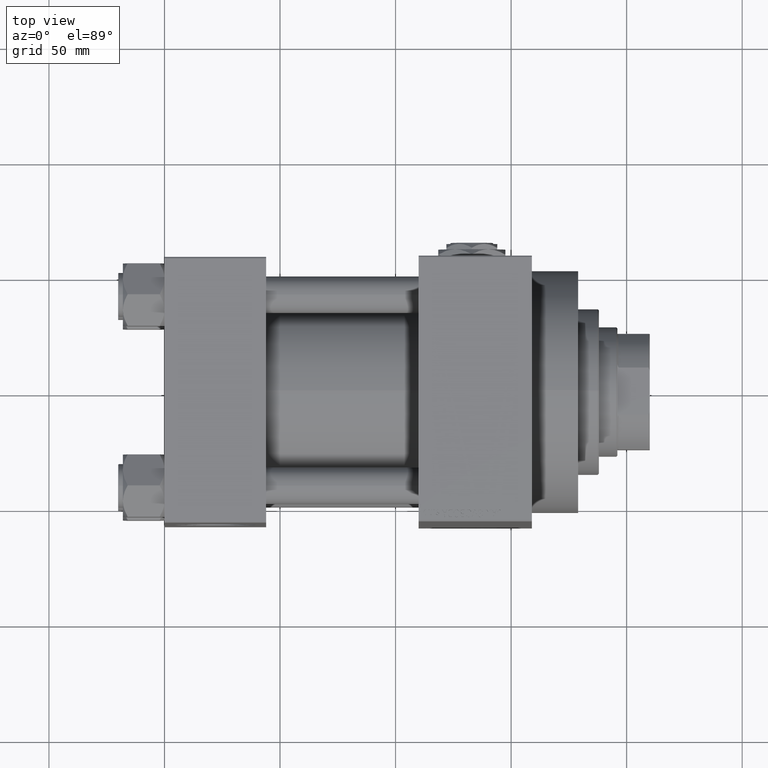
[diagram: clean part render]
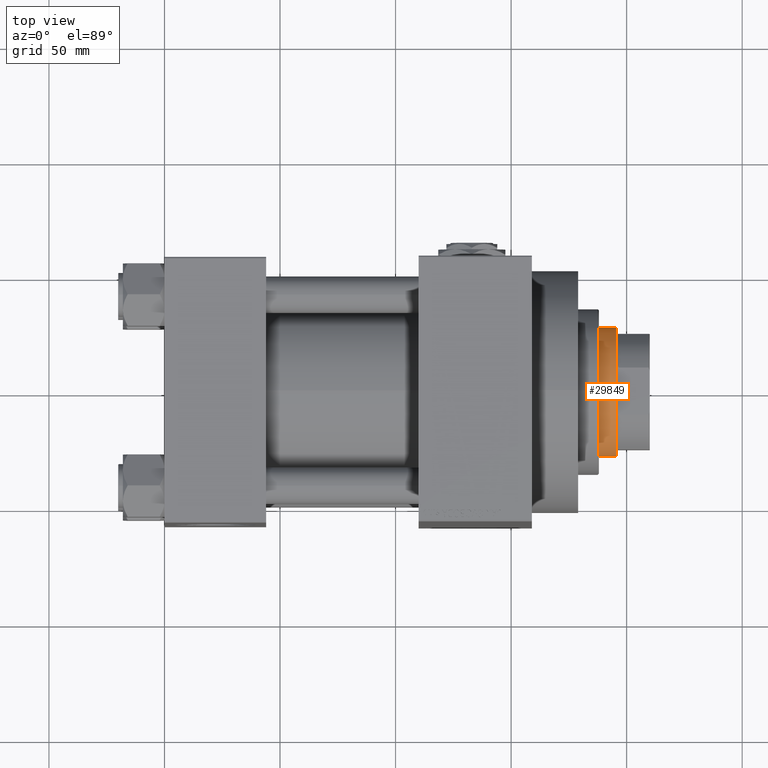
[diagram: same view with one face highlighted and labeled with its STEP entity id]
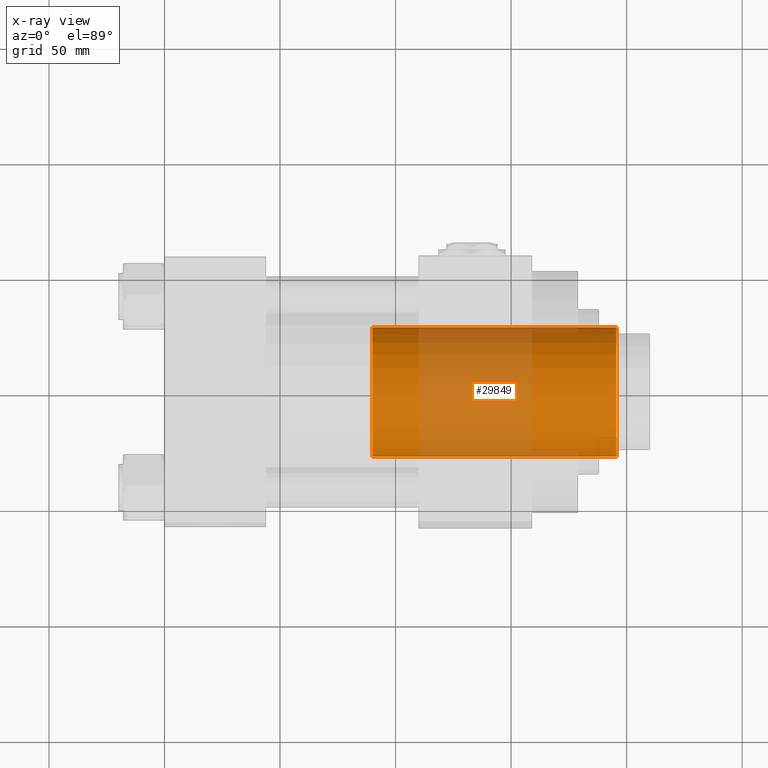
[diagram: x-ray of the same camera — body ghosted, the highlighted face saturated]
A machine part, top view. The second image highlights one B-rep face of the part: STEP entity #29849.
The next image is the same camera in x-ray: the body ghosted, the highlighted face saturated — about 48% of this face is hidden behind the body in this view.
In plain terms, the highlighted cylindrical surface (partial cylindrical patch) has radius 28 mm, axis along (-1, 0, 0).
Its self-contained STEP definition (entity closure, byte-faithful):
#860 = EDGE_CURVE ( 'NONE', #11797, #23802, #35767, .T. ) ;
#4555 = DIRECTION ( 'NONE',  ( 1.000000000000000000, 0.000000000000000000, 0.000000000000000000 ) ) ;
#6463 = ORIENTED_EDGE ( 'NONE', *, *, #45475, .T. ) ;
#8773 = DIRECTION ( 'NONE',  ( 0.000000000000000000, 0.000000000000000000, -1.000000000000000000 ) ) ;
#9044 = ORIENTED_EDGE ( 'NONE', *, *, #38848, .F. ) ;
#9684 = DIRECTION ( 'NONE',  ( -0.000000000000000000, -0.000000000000000000, -1.000000000000000000 ) ) ;
#11073 = DIRECTION ( 'NONE',  ( -0.000000000000000000, -0.000000000000000000, -1.000000000000000000 ) ) ;
#11231 = CARTESIAN_POINT ( 'NONE',  ( 28.00000000000000000, 3.429011037612589276E-15, 151.4999999999999432 ) ) ;
#11797 = VERTEX_POINT ( 'NONE', #11231 ) ;
#13170 = CARTESIAN_POINT ( 'NONE',  ( 0.000000000000000000, 0.000000000000000000, 152.0000000000000000 ) ) ;
#13379 = CIRCLE ( 'NONE', #18116, 28.00000000000000000 ) ;
#14336 = AXIS2_PLACEMENT_3D ( 'NONE', #35364, #8773, #4555 ) ;
#16903 = VERTEX_POINT ( 'NONE', #47581 ) ;
#18116 = AXIS2_PLACEMENT_3D ( 'NONE', #34626, #38835, #46797 ) ;
#19555 = DIRECTION ( 'NONE',  ( -0.000000000000000000, -0.000000000000000000, -1.000000000000000000 ) ) ;
#20294 = CARTESIAN_POINT ( 'NONE',  ( 28.00000000000000000, 3.429011037612589276E-15, 152.0000000000000000 ) ) ;
#20783 = VERTEX_POINT ( 'NONE', #30686 ) ;
#20804 = ORIENTED_EDGE ( 'NONE', *, *, #860, .T. ) ;
#22726 = LINE ( 'NONE', #40885, #43523 ) ;
#23802 = VERTEX_POINT ( 'NONE', #46272 ) ;
#24570 = DIRECTION ( 'NONE',  ( -1.000000000000000000, 0.000000000000000000, 0.000000000000000000 ) ) ;
#29849 = ADVANCED_FACE ( 'NONE', ( #47214 ), #47703, .T. ) ;
#30686 = CARTESIAN_POINT ( 'NONE',  ( 28.00000000000000000, 3.429011037612589276E-15, 46.00000000000000000 ) ) ;
#30801 = EDGE_LOOP ( 'NONE', ( #9044, #20804, #6463, #41341 ) ) ;
#34626 = CARTESIAN_POINT ( 'NONE',  ( 0.000000000000000000, 0.000000000000000000, 46.00000000000000000 ) ) ;
#34963 = LINE ( 'NONE', #20294, #42609 ) ;
#35364 = CARTESIAN_POINT ( 'NONE',  ( 0.000000000000000000, 0.000000000000000000, 151.4999999999999432 ) ) ;
#35767 = CIRCLE ( 'NONE', #14336, 28.00000000000000000 ) ;
#38835 = DIRECTION ( 'NONE',  ( 0.000000000000000000, 0.000000000000000000, 1.000000000000000000 ) ) ;
#38848 = EDGE_CURVE ( 'NONE', #11797, #20783, #34963, .T. ) ;
#39294 = AXIS2_PLACEMENT_3D ( 'NONE', #13170, #9684, #24570 ) ;
#40885 = CARTESIAN_POINT ( 'NONE',  ( -28.00000000000000000, 0.000000000000000000, 152.0000000000000000 ) ) ;
#41263 = EDGE_CURVE ( 'NONE', #16903, #20783, #13379, .T. ) ;
#41341 = ORIENTED_EDGE ( 'NONE', *, *, #41263, .T. ) ;
#42609 = VECTOR ( 'NONE', #19555, 1000.000000000000000 ) ;
#43523 = VECTOR ( 'NONE', #11073, 1000.000000000000000 ) ;
#45475 = EDGE_CURVE ( 'NONE', #23802, #16903, #22726, .T. ) ;
#46272 = CARTESIAN_POINT ( 'NONE',  ( -28.00000000000000000, 0.000000000000000000, 151.4999999999999432 ) ) ;
#46797 = DIRECTION ( 'NONE',  ( 1.000000000000000000, 0.000000000000000000, 0.000000000000000000 ) ) ;
#47214 = FACE_OUTER_BOUND ( 'NONE', #30801, .T. ) ;
#47581 = CARTESIAN_POINT ( 'NONE',  ( -28.00000000000000000, 0.000000000000000000, 46.00000000000000000 ) ) ;
#47703 = CYLINDRICAL_SURFACE ( 'NONE', #39294, 28.00000000000000000 ) ;